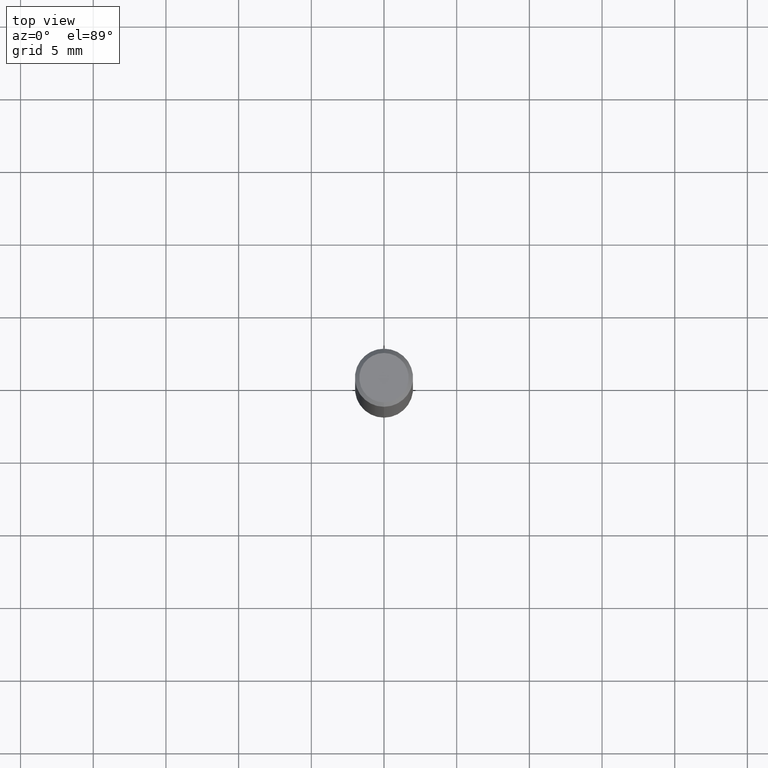
[diagram: clean part render]
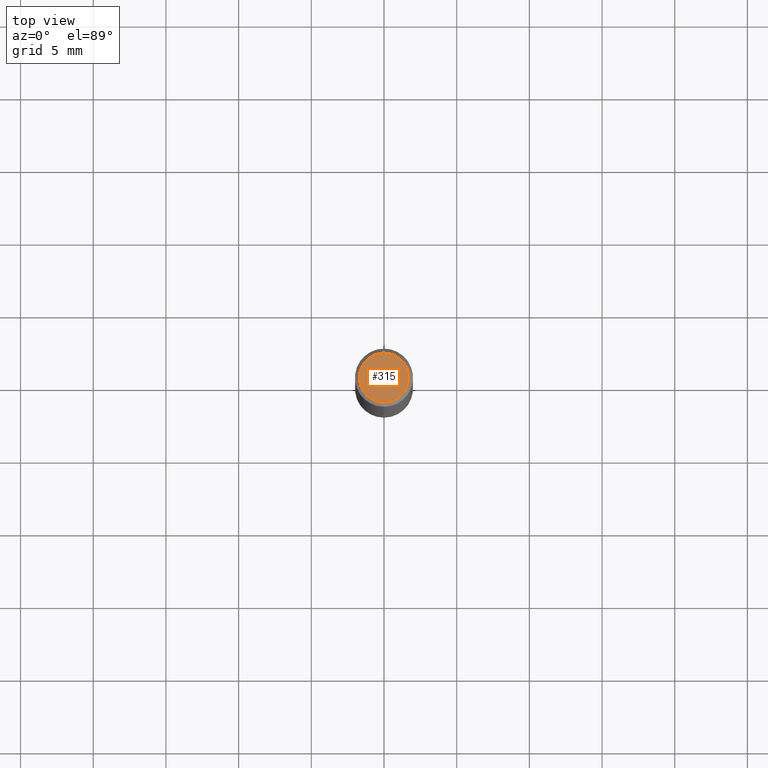
[diagram: same view with one face highlighted and labeled with its STEP entity id]
A machine part, top view. The second image highlights one B-rep face of the part: STEP entity #315.
In plain terms, the highlighted planar face has unit normal (-0, 0, 1).
Its self-contained STEP definition (entity closure, byte-faithful):
#157=VERTEX_POINT('',#392);
#169=VERTEX_POINT('',#405);
#175=EDGE_CURVE('',#169,#157,#411,.T.);
#315=ADVANCED_FACE('',(#572),#573,.T.);
#331=EDGE_CURVE('',#157,#169,#593,.T.);
#392=CARTESIAN_POINT('',(2.08183080149804E-016,-1.7,0.00999999999999801));
#405=CARTESIAN_POINT('',(0.0,1.7,0.00999999999999801));
#411=CIRCLE('',#676,1.7);
#572=FACE_OUTER_BOUND('',#880,.T.);
#573=PLANE('',#881);
#593=CIRCLE('',#908,1.7);
#676=AXIS2_PLACEMENT_3D('',#964,#965,#966);
#880=EDGE_LOOP('',(#1194,#1195));
#881=AXIS2_PLACEMENT_3D('',#1196,#1197,#1198);
#908=AXIS2_PLACEMENT_3D('',#1226,#1227,#1228);
#964=CARTESIAN_POINT('',(0.0,0.0,0.00999999999999801));
#965=DIRECTION('',(0.0,0.0,-1.0));
#966=DIRECTION('',(0.0,1.0,0.0));
#1194=ORIENTED_EDGE('',*,*,#175,.F.);
#1195=ORIENTED_EDGE('',*,*,#331,.F.);
#1196=CARTESIAN_POINT('',(0.0,0.85,0.00999999999999801));
#1197=DIRECTION('',(-0.0,0.0,1.0));
#1198=DIRECTION('',(0.0,-1.0,0.0));
#1226=CARTESIAN_POINT('',(0.0,0.0,0.00999999999999801));
#1227=DIRECTION('',(0.0,0.0,-1.0));
#1228=DIRECTION('',(0.0,1.0,0.0));